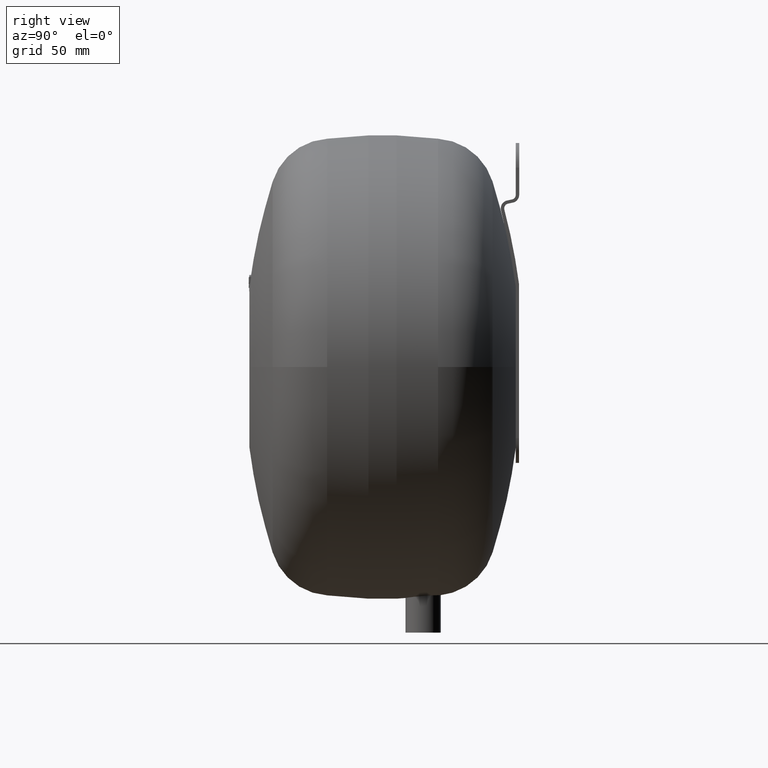
[diagram: clean part render]
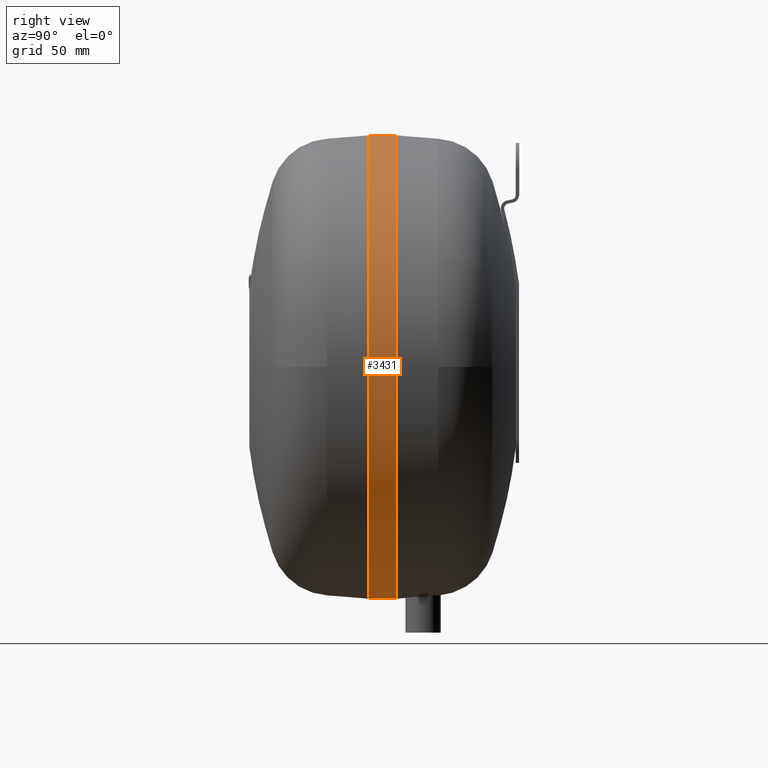
[diagram: same view with one face highlighted and labeled with its STEP entity id]
A machine part, right view. The second image highlights one B-rep face of the part: STEP entity #3431.
In plain terms, the highlighted cylindrical surface (partial cylindrical patch) has radius 140 mm, axis along (-0, -1, 0).
Its self-contained STEP definition (entity closure, byte-faithful):
#3390=CARTESIAN_POINT('',(7.105427E-015,-20.499999999999972,160.50000000000006));
#3391=DIRECTION('',(-1.836910E-016,-1.0,0.0));
#3392=DIRECTION('',(0.0,0.0,1.0));
#3393=AXIS2_PLACEMENT_3D('',#3390,#3391,#3392);
#3394=CYLINDRICAL_SURFACE('',#3393,140.0);
#3395=CARTESIAN_POINT('',(1.421085E-014,-32.999999999999972,300.50000000000006));
#3396=VERTEX_POINT('',#3395);
#3397=CARTESIAN_POINT('',(1.421085E-014,-15.999999999999972,300.50000000000006));
#3398=VERTEX_POINT('',#3397);
#3399=CARTESIAN_POINT('',(1.338153E-014,-32.999999999999972,300.50000000000006));
#3400=DIRECTION('',(0.0,1.0,0.0));
#3401=VECTOR('',#3400,17.0);
#3402=LINE('',#3399,#3401);
#3403=EDGE_CURVE('',#3396,#3398,#3402,.T.);
#3404=ORIENTED_EDGE('',*,*,#3403,.F.);
#3405=CARTESIAN_POINT('',(1.086838E-014,-32.999999999999972,20.500000000000057));
#3406=VERTEX_POINT('',#3405);
#3407=CARTESIAN_POINT('',(7.105427E-015,-32.999999999999972,160.50000000000006));
#3408=DIRECTION('',(0.0,-1.0,0.0));
#3409=DIRECTION('',(0.0,0.0,1.0));
#3410=AXIS2_PLACEMENT_3D('',#3407,#3408,#3409);
#3411=CIRCLE('',#3410,140.0);
#3412=EDGE_CURVE('',#3406,#3396,#3411,.T.);
#3413=ORIENTED_EDGE('',*,*,#3412,.F.);
#3414=CARTESIAN_POINT('',(1.338153E-014,-15.999999999999973,20.50000000000005));
#3415=VERTEX_POINT('',#3414);
#3416=CARTESIAN_POINT('',(1.338153E-014,-32.999999999999972,20.500000000000057));
#3417=DIRECTION('',(0.0,1.0,0.0));
#3418=VECTOR('',#3417,17.0);
#3419=LINE('',#3416,#3418);
#3420=EDGE_CURVE('',#3406,#3415,#3419,.T.);
#3421=ORIENTED_EDGE('',*,*,#3420,.T.);
#3422=CARTESIAN_POINT('',(7.105427E-015,-15.999999999999972,160.50000000000006));
#3423=DIRECTION('',(0.0,-1.0,0.0));
#3424=DIRECTION('',(0.0,0.0,1.0));
#3425=AXIS2_PLACEMENT_3D('',#3422,#3423,#3424);
#3426=CIRCLE('',#3425,140.0);
#3427=EDGE_CURVE('',#3415,#3398,#3426,.T.);
#3428=ORIENTED_EDGE('',*,*,#3427,.T.);
#3429=EDGE_LOOP('',(#3404,#3413,#3421,#3428));
#3430=FACE_OUTER_BOUND('',#3429,.T.);
#3431=ADVANCED_FACE('',(#3430),#3394,.T.);